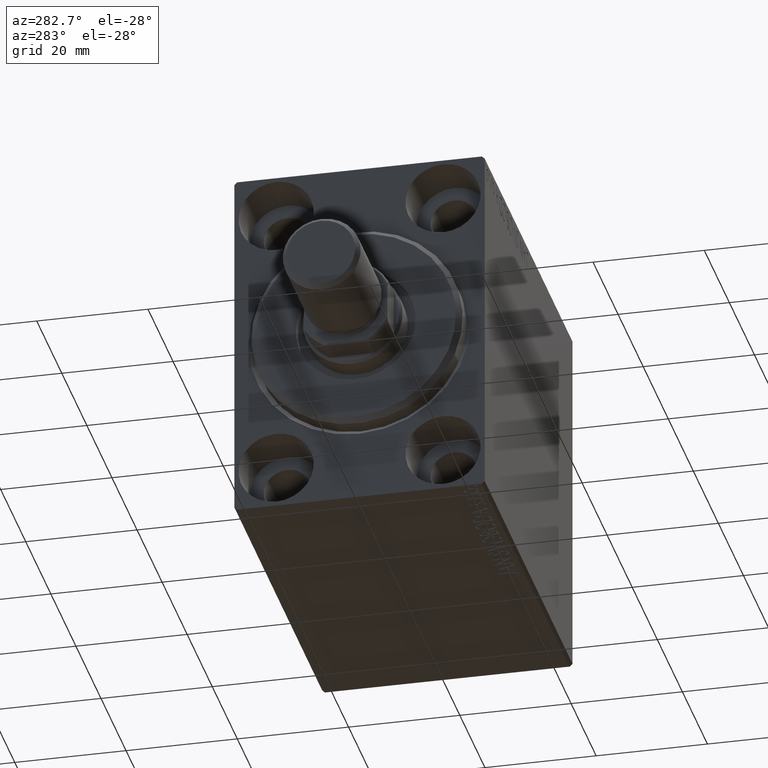
[diagram: clean part render]
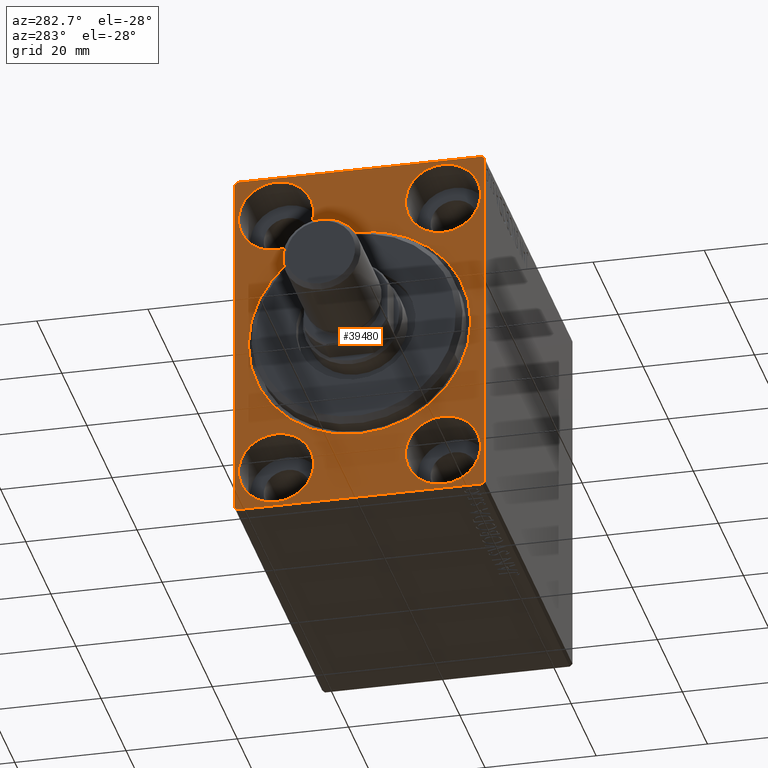
[diagram: same view with one face highlighted and labeled with its STEP entity id]
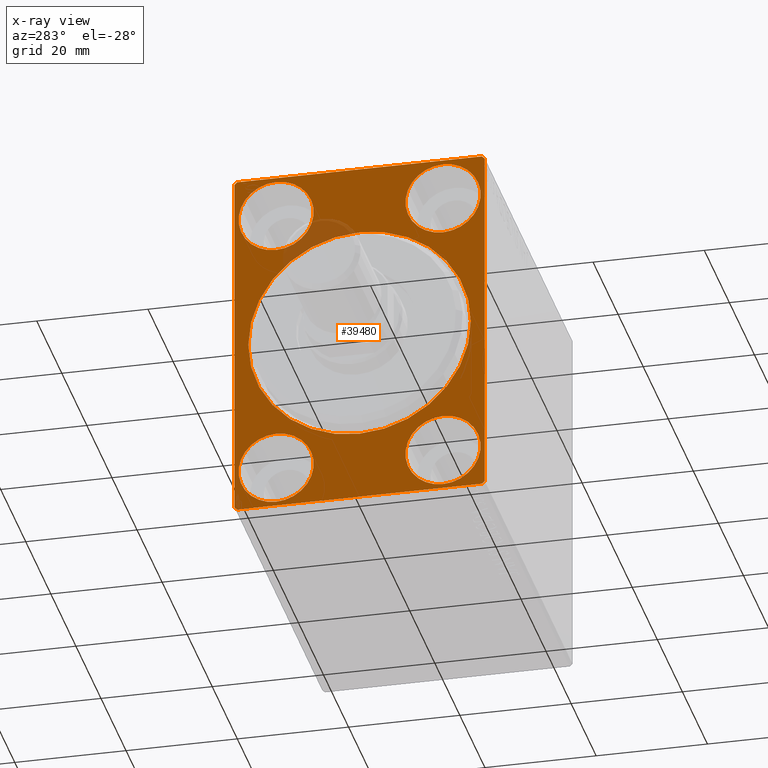
[diagram: x-ray of the same camera — body ghosted, the highlighted face saturated]
A machine part, auxiliary view. The second image highlights one B-rep face of the part: STEP entity #39480.
The next image is the same camera in x-ray: the body ghosted, the highlighted face saturated — about 4% of this face is hidden behind the body in this view.
In plain terms, the highlighted planar face has unit normal (1, 0, 0).
Its self-contained STEP definition (entity closure, byte-faithful):
#127 = CARTESIAN_POINT ( 'NONE',  ( 0.000000000000000000, -22.50000000000000711, 32.49999999999999289 ) ) ;
#609 = CARTESIAN_POINT ( 'NONE',  ( 0.000000000000000000, -21.99999999999999289, 32.49999999999999289 ) ) ;
#1170 = DIRECTION ( 'NONE',  ( 0.000000000000000000, 0.000000000000000000, 1.000000000000000000 ) ) ;
#1215 = EDGE_CURVE ( 'NONE', #32507, #42595, #29326, .T. ) ;
#1242 = CARTESIAN_POINT ( 'NONE',  ( 0.000000000000000000, -15.00000000000000355, -31.75000000000000000 ) ) ;
#1386 = ORIENTED_EDGE ( 'NONE', *, *, #1215, .T. ) ;
#1608 = DIRECTION ( 'NONE',  ( 0.000000000000000000, 0.000000000000000000, 1.000000000000000000 ) ) ;
#2984 = AXIS2_PLACEMENT_3D ( 'NONE', #44117, #33541, #9964 ) ;
#4028 = VERTEX_POINT ( 'NONE', #5560 ) ;
#4098 = EDGE_LOOP ( 'NONE', ( #35864, #17246 ) ) ;
#4240 = AXIS2_PLACEMENT_3D ( 'NONE', #6018, #13413, #6460 ) ;
#4325 = CIRCLE ( 'NONE', #41607, 6.749999999999999112 ) ;
#5526 = ORIENTED_EDGE ( 'NONE', *, *, #7573, .F. ) ;
#5533 = EDGE_LOOP ( 'NONE', ( #7195, #31839, #30167, #22018, #9919, #31041, #35627, #1386 ) ) ;
#5560 = CARTESIAN_POINT ( 'NONE',  ( 0.000000000000000000, -22.50000000000000711, 31.99999999999999289 ) ) ;
#6018 = CARTESIAN_POINT ( 'NONE',  ( 0.000000000000000000, -15.00000000000000355, -25.00000000000000000 ) ) ;
#6162 = CARTESIAN_POINT ( 'NONE',  ( 0.000000000000000000, 14.99999999999999645, -31.75000000000000000 ) ) ;
#6168 = CARTESIAN_POINT ( 'NONE',  ( 0.000000000000000000, -14.99999999999999645, 18.25000000000000355 ) ) ;
#6375 = DIRECTION ( 'NONE',  ( -1.000000000000000000, 0.000000000000000000, 0.000000000000000000 ) ) ;
#6460 = DIRECTION ( 'NONE',  ( 0.000000000000000000, 0.000000000000000000, 1.000000000000000000 ) ) ;
#7112 = VECTOR ( 'NONE', #10022, 1000.000000000000000 ) ;
#7195 = ORIENTED_EDGE ( 'NONE', *, *, #11017, .F. ) ;
#7573 = EDGE_CURVE ( 'NONE', #18255, #11065, #37252, .T. ) ;
#7847 = DIRECTION ( 'NONE',  ( -0.000000000000000000, 0.7071067811865425767, -0.7071067811865525687 ) ) ;
#8527 = EDGE_LOOP ( 'NONE', ( #23877, #21392 ) ) ;
#8722 = LINE ( 'NONE', #25577, #32961 ) ;
#8756 = VERTEX_POINT ( 'NONE', #42338 ) ;
#8996 = DIRECTION ( 'NONE',  ( -1.000000000000000000, 0.000000000000000000, 0.000000000000000000 ) ) ;
#9171 = EDGE_LOOP ( 'NONE', ( #26058, #17690 ) ) ;
#9306 = CARTESIAN_POINT ( 'NONE',  ( 0.000000000000000000, 15.00000000000000355, 31.75000000000000000 ) ) ;
#9703 = CIRCLE ( 'NONE', #21212, 6.749999999999999112 ) ;
#9919 = ORIENTED_EDGE ( 'NONE', *, *, #17383, .F. ) ;
#9964 = DIRECTION ( 'NONE',  ( 0.000000000000000000, 0.000000000000000000, 1.000000000000000000 ) ) ;
#10022 = DIRECTION ( 'NONE',  ( 0.000000000000000000, 0.000000000000000000, -1.000000000000000000 ) ) ;
#10050 = CARTESIAN_POINT ( 'NONE',  ( 0.000000000000000000, 0.000000000000000000, 0.000000000000000000 ) ) ;
#10252 = CARTESIAN_POINT ( 'NONE',  ( 0.000000000000000000, 0.000000000000000000, 0.000000000000000000 ) ) ;
#10427 = CARTESIAN_POINT ( 'NONE',  ( 0.000000000000000000, -22.50000000000000711, -32.00000000000000711 ) ) ;
#10494 = PLANE ( 'NONE',  #32654 ) ;
#10829 = VECTOR ( 'NONE', #27566, 1000.000000000000000 ) ;
#11017 = EDGE_CURVE ( 'NONE', #4028, #42595, #27545, .T. ) ;
#11065 = VERTEX_POINT ( 'NONE', #1242 ) ;
#11725 = VERTEX_POINT ( 'NONE', #28726 ) ;
#11802 = EDGE_CURVE ( 'NONE', #11725, #36892, #8722, .T. ) ;
#11915 = VERTEX_POINT ( 'NONE', #17899 ) ;
#12021 = CARTESIAN_POINT ( 'NONE',  ( 0.000000000000000000, 21.99999999999999289, 32.50000000000000000 ) ) ;
#13191 = FACE_BOUND ( 'NONE', #9171, .T. ) ;
#13411 = FACE_BOUND ( 'NONE', #8527, .T. ) ;
#13413 = DIRECTION ( 'NONE',  ( -1.000000000000000000, 0.000000000000000000, 0.000000000000000000 ) ) ;
#13574 = VERTEX_POINT ( 'NONE', #32061 ) ;
#13853 = CARTESIAN_POINT ( 'NONE',  ( 0.000000000000000000, 22.49999999999999289, 32.50000000000000000 ) ) ;
#13948 = VECTOR ( 'NONE', #16866, 1000.000000000000000 ) ;
#14475 = AXIS2_PLACEMENT_3D ( 'NONE', #10252, #41243, #31357 ) ;
#14681 = CARTESIAN_POINT ( 'NONE',  ( 0.000000000000000000, 0.000000000000000000, 0.000000000000000000 ) ) ;
#15355 = CIRCLE ( 'NONE', #21054, 6.749999999999999112 ) ;
#16286 = EDGE_CURVE ( 'NONE', #21178, #11915, #4325, .T. ) ;
#16866 = DIRECTION ( 'NONE',  ( 0.000000000000000000, 1.000000000000000000, 0.000000000000000000 ) ) ;
#17246 = ORIENTED_EDGE ( 'NONE', *, *, #26222, .T. ) ;
#17383 = EDGE_CURVE ( 'NONE', #11725, #42341, #26715, .T. ) ;
#17690 = ORIENTED_EDGE ( 'NONE', *, *, #26046, .F. ) ;
#17899 = CARTESIAN_POINT ( 'NONE',  ( 0.000000000000000000, 15.00000000000000355, 18.25000000000000355 ) ) ;
#17990 = CIRCLE ( 'NONE', #40186, 6.749999999999999112 ) ;
#18255 = VERTEX_POINT ( 'NONE', #20575 ) ;
#18978 = CARTESIAN_POINT ( 'NONE',  ( 0.000000000000000000, -22.00000000000002132, -32.50000000000000711 ) ) ;
#19290 = VERTEX_POINT ( 'NONE', #33997 ) ;
#19855 = VECTOR ( 'NONE', #7847, 999.9999999999998863 ) ;
#19856 = ORIENTED_EDGE ( 'NONE', *, *, #27642, .F. ) ;
#20575 = CARTESIAN_POINT ( 'NONE',  ( 0.000000000000000000, -15.00000000000000355, -18.25000000000000355 ) ) ;
#21050 = ORIENTED_EDGE ( 'NONE', *, *, #30973, .F. ) ;
#21054 = AXIS2_PLACEMENT_3D ( 'NONE', #27983, #41444, #34926 ) ;
#21178 = VERTEX_POINT ( 'NONE', #9306 ) ;
#21212 = AXIS2_PLACEMENT_3D ( 'NONE', #26704, #33000, #23323 ) ;
#21363 = EDGE_CURVE ( 'NONE', #19290, #42537, #17990, .T. ) ;
#21392 = ORIENTED_EDGE ( 'NONE', *, *, #41110, .F. ) ;
#21409 = VERTEX_POINT ( 'NONE', #31964 ) ;
#21638 = DIRECTION ( 'NONE',  ( -1.000000000000000000, 0.000000000000000000, 0.000000000000000000 ) ) ;
#22018 = ORIENTED_EDGE ( 'NONE', *, *, #43371, .T. ) ;
#22389 = CIRCLE ( 'NONE', #2984, 6.749999999999999112 ) ;
#23127 = CIRCLE ( 'NONE', #28885, 6.749999999999999112 ) ;
#23210 = EDGE_CURVE ( 'NONE', #40765, #40394, #24426, .T. ) ;
#23323 = DIRECTION ( 'NONE',  ( 0.000000000000000000, 0.000000000000000000, 1.000000000000000000 ) ) ;
#23452 = CARTESIAN_POINT ( 'NONE',  ( 0.000000000000000000, -14.99999999999999645, 25.00000000000000000 ) ) ;
#23554 = CARTESIAN_POINT ( 'NONE',  ( 0.000000000000000000, 22.50000000000000000, -32.50000000000000711 ) ) ;
#23784 = CARTESIAN_POINT ( 'NONE',  ( 0.000000000000000000, -22.50000000000000711, 31.99999999999999289 ) ) ;
#23877 = ORIENTED_EDGE ( 'NONE', *, *, #21363, .F. ) ;
#23978 = DIRECTION ( 'NONE',  ( 1.000000000000000000, 0.000000000000000000, 0.000000000000000000 ) ) ;
#24426 = LINE ( 'NONE', #13853, #10829 ) ;
#24784 = EDGE_LOOP ( 'NONE', ( #5526, #19856 ) ) ;
#24870 = EDGE_CURVE ( 'NONE', #8756, #13574, #42438, .T. ) ;
#25152 = LINE ( 'NONE', #38629, #19855 ) ;
#25355 = AXIS2_PLACEMENT_3D ( 'NONE', #29025, #43167, #1608 ) ;
#25577 = CARTESIAN_POINT ( 'NONE',  ( 0.000000000000000000, 22.50000000000000000, -32.00000000000002132 ) ) ;
#26011 = CIRCLE ( 'NONE', #35323, 20.00000000000000355 ) ;
#26046 = EDGE_CURVE ( 'NONE', #11915, #21178, #22389, .T. ) ;
#26058 = ORIENTED_EDGE ( 'NONE', *, *, #16286, .F. ) ;
#26222 = EDGE_CURVE ( 'NONE', #13574, #8756, #26011, .T. ) ;
#26472 = VECTOR ( 'NONE', #37257, 1000.000000000000000 ) ;
#26704 = CARTESIAN_POINT ( 'NONE',  ( 0.000000000000000000, -14.99999999999999645, 25.00000000000000000 ) ) ;
#26715 = LINE ( 'NONE', #23554, #26472 ) ;
#27129 = FACE_BOUND ( 'NONE', #34859, .T. ) ;
#27386 = LINE ( 'NONE', #23784, #42594 ) ;
#27545 = LINE ( 'NONE', #127, #7112 ) ;
#27566 = DIRECTION ( 'NONE',  ( 0.000000000000000000, -1.000000000000000000, -1.541976423090495387E-16 ) ) ;
#27642 = EDGE_CURVE ( 'NONE', #11065, #18255, #23127, .T. ) ;
#27983 = CARTESIAN_POINT ( 'NONE',  ( 0.000000000000000000, 14.99999999999999645, -25.00000000000000000 ) ) ;
#28726 = CARTESIAN_POINT ( 'NONE',  ( 0.000000000000000000, 22.50000000000000000, -32.00000000000002132 ) ) ;
#28759 = ORIENTED_EDGE ( 'NONE', *, *, #29624, .F. ) ;
#28885 = AXIS2_PLACEMENT_3D ( 'NONE', #29015, #8996, #32368 ) ;
#29015 = CARTESIAN_POINT ( 'NONE',  ( 0.000000000000000000, -15.00000000000000355, -25.00000000000000000 ) ) ;
#29025 = CARTESIAN_POINT ( 'NONE',  ( 0.000000000000000000, 14.99999999999999645, -25.00000000000000000 ) ) ;
#29326 = LINE ( 'NONE', #43029, #36408 ) ;
#29624 = EDGE_CURVE ( 'NONE', #21409, #37795, #34638, .T. ) ;
#29896 = LINE ( 'NONE', #33263, #13948 ) ;
#30167 = ORIENTED_EDGE ( 'NONE', *, *, #23210, .F. ) ;
#30973 = EDGE_CURVE ( 'NONE', #37795, #21409, #15355, .T. ) ;
#31041 = ORIENTED_EDGE ( 'NONE', *, *, #11802, .T. ) ;
#31135 = CARTESIAN_POINT ( 'NONE',  ( 0.000000000000000000, 22.49999999999999289, 31.99999999999999289 ) ) ;
#31357 = DIRECTION ( 'NONE',  ( 0.000000000000000000, 0.000000000000000000, -1.000000000000000000 ) ) ;
#31523 = DIRECTION ( 'NONE',  ( 0.000000000000000000, 0.000000000000000000, -1.000000000000000000 ) ) ;
#31839 = ORIENTED_EDGE ( 'NONE', *, *, #35160, .T. ) ;
#31964 = CARTESIAN_POINT ( 'NONE',  ( 0.000000000000000000, 14.99999999999999645, -18.25000000000000355 ) ) ;
#32061 = CARTESIAN_POINT ( 'NONE',  ( 0.000000000000000000, 2.449293598294706907E-15, -20.00000000000000355 ) ) ;
#32368 = DIRECTION ( 'NONE',  ( 0.000000000000000000, 0.000000000000000000, 1.000000000000000000 ) ) ;
#32507 = VERTEX_POINT ( 'NONE', #18978 ) ;
#32654 = AXIS2_PLACEMENT_3D ( 'NONE', #10050, #23978, #40591 ) ;
#32846 = DIRECTION ( 'NONE',  ( -0.000000000000000000, 0.7071067811865474617, 0.7071067811865474617 ) ) ;
#32961 = VECTOR ( 'NONE', #35907, 1000.000000000000114 ) ;
#33000 = DIRECTION ( 'NONE',  ( -1.000000000000000000, 0.000000000000000000, 0.000000000000000000 ) ) ;
#33263 = CARTESIAN_POINT ( 'NONE',  ( 0.000000000000000000, -22.50000000000000711, -32.50000000000000711 ) ) ;
#33541 = DIRECTION ( 'NONE',  ( -1.000000000000000000, 0.000000000000000000, 0.000000000000000000 ) ) ;
#33997 = CARTESIAN_POINT ( 'NONE',  ( 0.000000000000000000, -14.99999999999999645, 31.75000000000000000 ) ) ;
#34638 = CIRCLE ( 'NONE', #25355, 6.749999999999999112 ) ;
#34859 = EDGE_LOOP ( 'NONE', ( #28759, #21050 ) ) ;
#34926 = DIRECTION ( 'NONE',  ( 0.000000000000000000, 0.000000000000000000, 1.000000000000000000 ) ) ;
#35160 = EDGE_CURVE ( 'NONE', #4028, #40394, #27386, .T. ) ;
#35323 = AXIS2_PLACEMENT_3D ( 'NONE', #14681, #41637, #31523 ) ;
#35627 = ORIENTED_EDGE ( 'NONE', *, *, #36520, .F. ) ;
#35864 = ORIENTED_EDGE ( 'NONE', *, *, #24870, .T. ) ;
#35907 = DIRECTION ( 'NONE',  ( 0.000000000000000000, -0.7071067811865376918, -0.7071067811865573427 ) ) ;
#36408 = VECTOR ( 'NONE', #39437, 1000.000000000000000 ) ;
#36520 = EDGE_CURVE ( 'NONE', #32507, #36892, #29896, .T. ) ;
#36892 = VERTEX_POINT ( 'NONE', #40513 ) ;
#37252 = CIRCLE ( 'NONE', #4240, 6.749999999999999112 ) ;
#37257 = DIRECTION ( 'NONE',  ( 0.000000000000000000, -1.067522139062650425E-16, 1.000000000000000000 ) ) ;
#37676 = FACE_BOUND ( 'NONE', #24784, .T. ) ;
#37795 = VERTEX_POINT ( 'NONE', #6162 ) ;
#38629 = CARTESIAN_POINT ( 'NONE',  ( 0.000000000000000000, 21.99999999999999289, 32.50000000000000000 ) ) ;
#39437 = DIRECTION ( 'NONE',  ( -0.000000000000000000, -0.7071067811865378028, 0.7071067811865573427 ) ) ;
#39480 = ADVANCED_FACE ( 'NONE', ( #40817, #27129, #13411, #13191, #37676, #44193 ), #10494, .F. ) ;
#40186 = AXIS2_PLACEMENT_3D ( 'NONE', #23452, #6375, #44118 ) ;
#40394 = VERTEX_POINT ( 'NONE', #609 ) ;
#40513 = CARTESIAN_POINT ( 'NONE',  ( 0.000000000000000000, 22.00000000000001421, -32.50000000000000711 ) ) ;
#40591 = DIRECTION ( 'NONE',  ( 0.000000000000000000, 0.000000000000000000, -1.000000000000000000 ) ) ;
#40765 = VERTEX_POINT ( 'NONE', #12021 ) ;
#40817 = FACE_BOUND ( 'NONE', #4098, .T. ) ;
#41110 = EDGE_CURVE ( 'NONE', #42537, #19290, #9703, .T. ) ;
#41243 = DIRECTION ( 'NONE',  ( 1.000000000000000000, 0.000000000000000000, 0.000000000000000000 ) ) ;
#41444 = DIRECTION ( 'NONE',  ( -1.000000000000000000, 0.000000000000000000, 0.000000000000000000 ) ) ;
#41607 = AXIS2_PLACEMENT_3D ( 'NONE', #42509, #21638, #1170 ) ;
#41637 = DIRECTION ( 'NONE',  ( 1.000000000000000000, 0.000000000000000000, 0.000000000000000000 ) ) ;
#42338 = CARTESIAN_POINT ( 'NONE',  ( 0.000000000000000000, 0.000000000000000000, 20.00000000000000355 ) ) ;
#42341 = VERTEX_POINT ( 'NONE', #31135 ) ;
#42438 = CIRCLE ( 'NONE', #14475, 20.00000000000000355 ) ;
#42509 = CARTESIAN_POINT ( 'NONE',  ( 0.000000000000000000, 15.00000000000000355, 25.00000000000000000 ) ) ;
#42537 = VERTEX_POINT ( 'NONE', #6168 ) ;
#42594 = VECTOR ( 'NONE', #32846, 1000.000000000000114 ) ;
#42595 = VERTEX_POINT ( 'NONE', #10427 ) ;
#43029 = CARTESIAN_POINT ( 'NONE',  ( 0.000000000000000000, -22.00000000000002132, -32.50000000000000711 ) ) ;
#43167 = DIRECTION ( 'NONE',  ( -1.000000000000000000, 0.000000000000000000, 0.000000000000000000 ) ) ;
#43371 = EDGE_CURVE ( 'NONE', #40765, #42341, #25152, .T. ) ;
#44117 = CARTESIAN_POINT ( 'NONE',  ( 0.000000000000000000, 15.00000000000000355, 25.00000000000000000 ) ) ;
#44118 = DIRECTION ( 'NONE',  ( 0.000000000000000000, 0.000000000000000000, 1.000000000000000000 ) ) ;
#44193 = FACE_OUTER_BOUND ( 'NONE', #5533, .T. ) ;